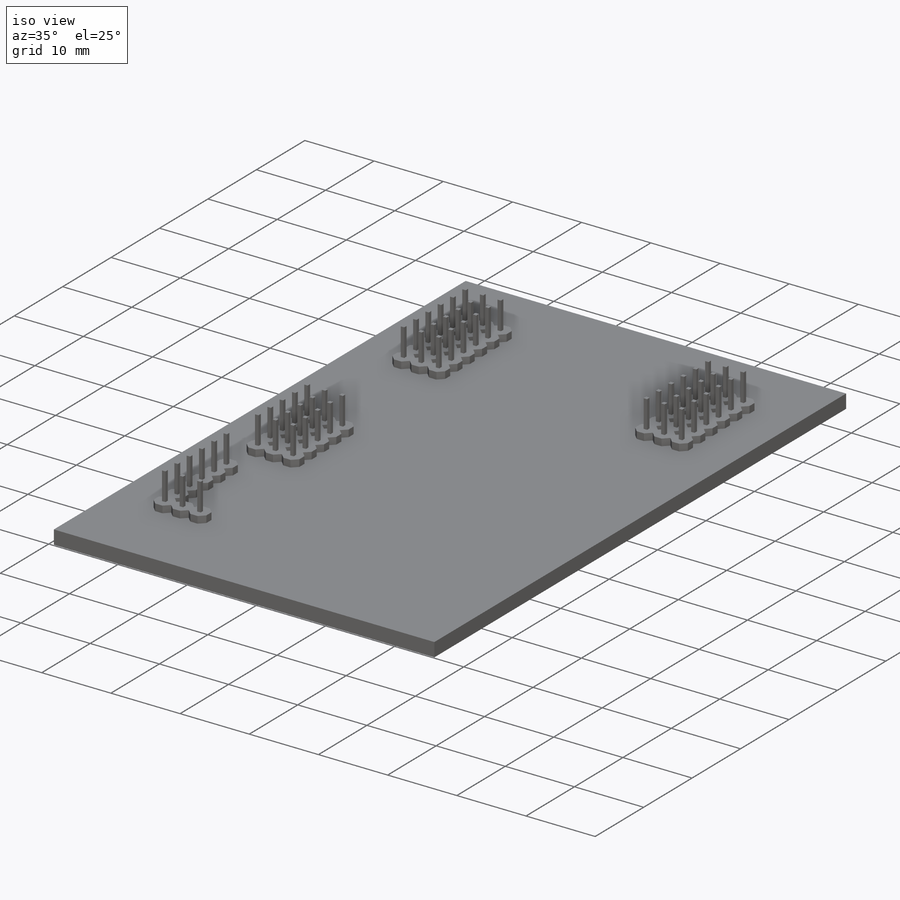
[diagram: iso view]
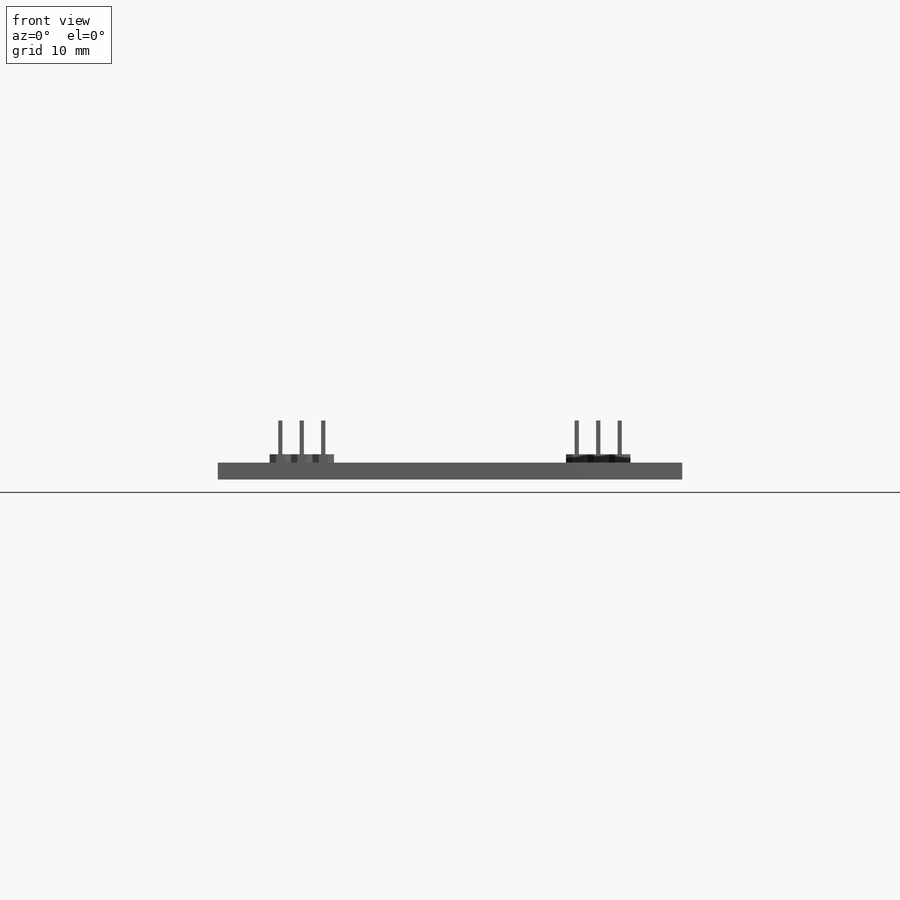
[diagram: front view]
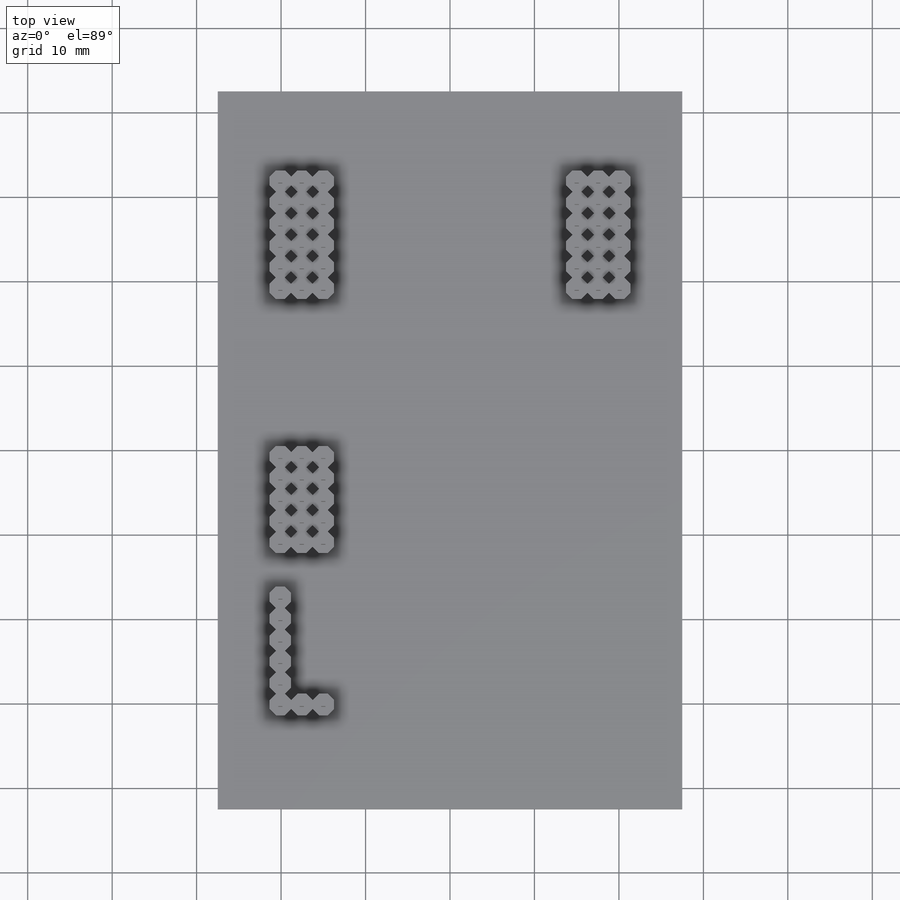
[diagram: top view]
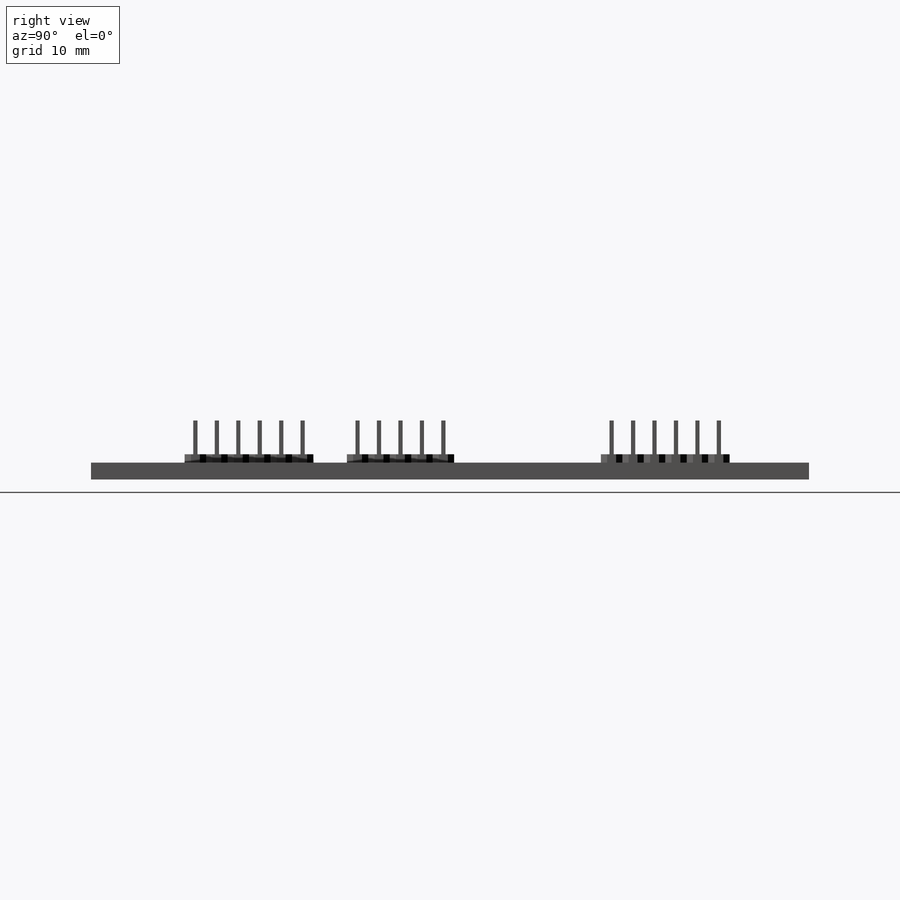
[diagram: right view]
SOLIDWORKS PART (.sldprt)
format: sldprt  version: not decoded by parser v0  size: 823,296 bytes
history: native  units: mm
features: pattern_linear x7, plane x3, sketch x3, extrude x3, material x1, mirror x1 (+10 scaffold rows collapsed)
feature tree (28):
  scaffold x10  (default folders/planes/origin — collapsed)
  material  "uhlíková ocel 7850"
  plane  "Přední rovina"
  plane  "Horní rovina"
  plane  "Pravá rovina"
  sketch  "Skica1"  dims[D1=55.0mm D2=85.0mm]
  extrude  "Přidat vysunutím1"  Depth=2mm
  sketch  "Skica2"  dims[D1=1.5mm]
  extrude  "Přidat vysunutím2"  Depth=1mm
  sketch  "Skica3"  dims[D1=0.5mm]
  extrude  "Přidat vysunutím3"  Depth=4mm
  pattern_linear  "LinPole1"  Count1=6 Count2=1 Spacing1=2.54mm Spacing2=10mm
  pattern_linear  "LinPole2"  Count1=3 Count2=1 Spacing1=2.54mm Spacing2=10mm
  pattern_linear  "LinPole3"  Count1=2 Count2=1 Spacing1=6.5mm Spacing2=10mm
  pattern_linear  "LinPole4"  Count1=3 Count2=1 Spacing1=2.54mm Spacing2=10mm
  pattern_linear  "LinPole5"  Count1=5 Count2=1 Spacing1=2.54mm Spacing2=10mm
  pattern_linear  "LinPole6"  Count1=2 Count2=1 Spacing1=25mm Spacing2=10mm
  pattern_linear  "LinPole7"  Count1=2 Count2=1 Spacing1=7.62mm Spacing2=10mm
  mirror  "Zrcadlit1"
decode coverage: 13 of 14 modeling features carry decoded parameters
note: suppression state not decoded; provenance and decode notes live in map.json
